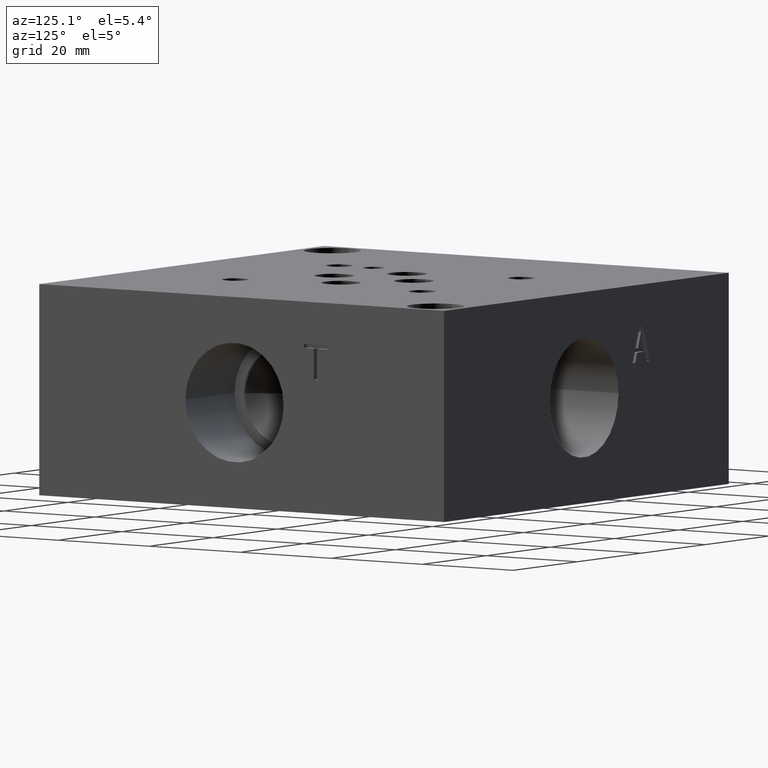
[diagram: clean part render]
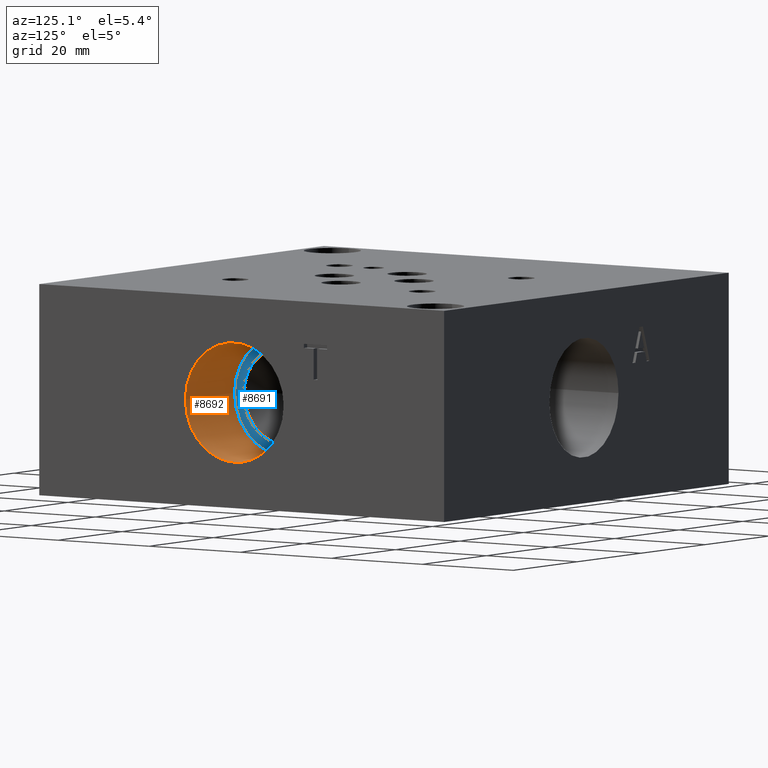
[diagram: same view with the hole feature highlighted: cylindrical wall and planar end face, labeled with their STEP entity ids]
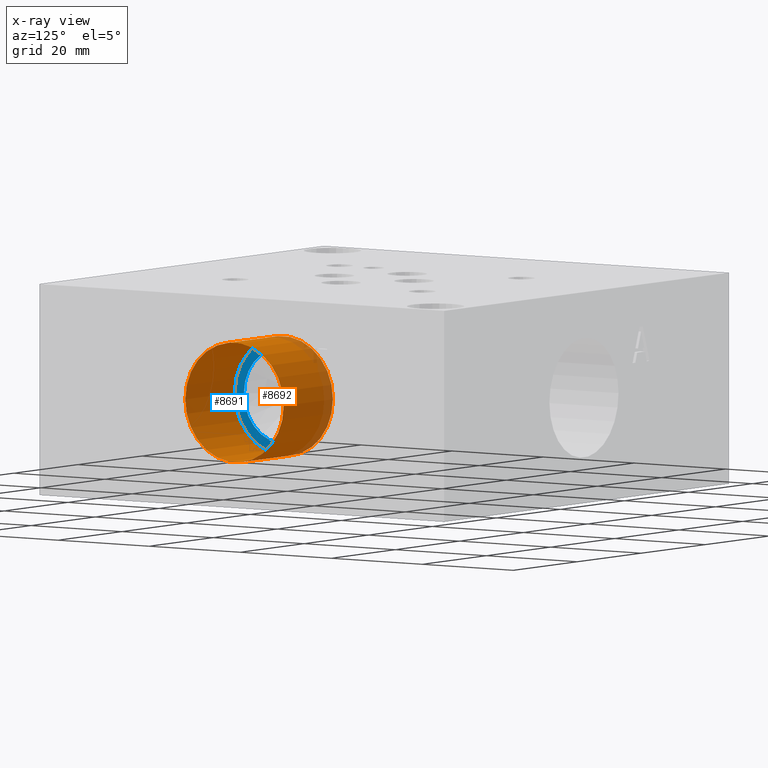
[diagram: x-ray of the same camera — body ghosted, the hole faces saturated]
A machine part, auxiliary view. The highlighted faces form one hole feature of diameter 21.59 mm: the cylindrical wall (entity #8692, orange) and its adjacent planar end face (entity #8691, blue) — they share a circular edge in the B-rep.
The next image is the same camera in x-ray (body ghosted, the hole faces saturated) — the bore reads through the body.
Wall:
#14=CYLINDRICAL_SURFACE('',#9024,10.795);
#60=CIRCLE('',#9021,10.795);
#61=CIRCLE('',#9022,10.795);
#63=CIRCLE('',#9025,10.795);
#64=CIRCLE('',#9026,10.795);
#862=FACE_OUTER_BOUND('',#1343,.T.);
#1343=EDGE_LOOP('',(#7512,#7513,#7514,#7515,#7516,#7517));
#2220=LINE('',#14762,#3060);
#3060=VECTOR('',#10494,10.795);
#4096=VERTEX_POINT('',#14751);
#4097=VERTEX_POINT('',#14752);
#4099=VERTEX_POINT('',#14758);
#4100=VERTEX_POINT('',#14759);
#5269=EDGE_CURVE('',#4096,#4097,#60,.T.);
#5270=EDGE_CURVE('',#4097,#4096,#61,.T.);
#5272=EDGE_CURVE('',#4099,#4100,#63,.T.);
#5273=EDGE_CURVE('',#4100,#4099,#64,.T.);
#5274=EDGE_CURVE('',#4100,#4097,#2220,.T.);
#7512=ORIENTED_EDGE('',*,*,#5272,.F.);
#7513=ORIENTED_EDGE('',*,*,#5273,.F.);
#7514=ORIENTED_EDGE('',*,*,#5274,.T.);
#7515=ORIENTED_EDGE('',*,*,#5269,.F.);
#7516=ORIENTED_EDGE('',*,*,#5270,.F.);
#7517=ORIENTED_EDGE('',*,*,#5274,.F.);
#8692=ADVANCED_FACE('',(#862),#14,.F.);
#9021=AXIS2_PLACEMENT_3D('',#14753,#10482,#10483);
#9022=AXIS2_PLACEMENT_3D('',#14754,#10484,#10485);
#9024=AXIS2_PLACEMENT_3D('',#14757,#10488,#10489);
#9025=AXIS2_PLACEMENT_3D('',#14760,#10490,#10491);
#9026=AXIS2_PLACEMENT_3D('',#14761,#10492,#10493);
#10482=DIRECTION('center_axis',(1.,0.,0.));
#10483=DIRECTION('ref_axis',(0.,1.,0.));
#10484=DIRECTION('center_axis',(1.,0.,0.));
#10485=DIRECTION('ref_axis',(0.,1.,0.));
#10488=DIRECTION('center_axis',(1.,0.,0.));
#10489=DIRECTION('ref_axis',(0.,1.,0.));
#10490=DIRECTION('center_axis',(-1.,0.,0.));
#10491=DIRECTION('ref_axis',(0.,1.,0.));
#10492=DIRECTION('center_axis',(-1.,0.,0.));
#10493=DIRECTION('ref_axis',(0.,1.,0.));
#10494=DIRECTION('',(-1.,0.,0.));
#14751=CARTESIAN_POINT('',(73.533,53.6702,19.05));
#14752=CARTESIAN_POINT('',(73.533,32.0802,19.05));
#14753=CARTESIAN_POINT('Origin',(73.533,42.8752,19.05));
#14754=CARTESIAN_POINT('Origin',(73.533,42.8752,19.05));
#14757=CARTESIAN_POINT('Origin',(81.2165,42.8752,19.05));
#14758=CARTESIAN_POINT('',(88.9,53.6702,19.05));
#14759=CARTESIAN_POINT('',(88.9,32.0802,19.05));
#14760=CARTESIAN_POINT('Origin',(88.9,42.8752,19.05));
#14761=CARTESIAN_POINT('Origin',(88.9,42.8752,19.05));
#14762=CARTESIAN_POINT('',(81.2165,32.0802,19.05));
End face:
#60=CIRCLE('',#9021,10.795);
#61=CIRCLE('',#9022,10.795);
#62=CIRCLE('',#9023,8.7376);
#177=FACE_BOUND('',#1342,.T.);
#455=PLANE('',#9020);
#861=FACE_OUTER_BOUND('',#1341,.T.);
#1341=EDGE_LOOP('',(#7509,#7510));
#1342=EDGE_LOOP('',(#7511));
#4096=VERTEX_POINT('',#14751);
#4097=VERTEX_POINT('',#14752);
#4098=VERTEX_POINT('',#14755);
#5269=EDGE_CURVE('',#4096,#4097,#60,.T.);
#5270=EDGE_CURVE('',#4097,#4096,#61,.T.);
#5271=EDGE_CURVE('',#4098,#4098,#62,.T.);
#7509=ORIENTED_EDGE('',*,*,#5269,.T.);
#7510=ORIENTED_EDGE('',*,*,#5270,.T.);
#7511=ORIENTED_EDGE('',*,*,#5271,.F.);
#8691=ADVANCED_FACE('',(#861,#177),#455,.T.);
#9020=AXIS2_PLACEMENT_3D('',#14750,#10480,#10481);
#9021=AXIS2_PLACEMENT_3D('',#14753,#10482,#10483);
#9022=AXIS2_PLACEMENT_3D('',#14754,#10484,#10485);
#9023=AXIS2_PLACEMENT_3D('',#14756,#10486,#10487);
#10480=DIRECTION('center_axis',(1.,0.,0.));
#10481=DIRECTION('ref_axis',(0.,1.,0.));
#10482=DIRECTION('center_axis',(1.,0.,0.));
#10483=DIRECTION('ref_axis',(0.,1.,0.));
#10484=DIRECTION('center_axis',(1.,0.,0.));
#10485=DIRECTION('ref_axis',(0.,1.,0.));
#10486=DIRECTION('center_axis',(1.,0.,0.));
#10487=DIRECTION('ref_axis',(0.,1.,0.));
#14750=CARTESIAN_POINT('Origin',(73.533,42.8752,19.05));
#14751=CARTESIAN_POINT('',(73.533,53.6702,19.05));
#14752=CARTESIAN_POINT('',(73.533,32.0802,19.05));
#14753=CARTESIAN_POINT('Origin',(73.533,42.8752,19.05));
#14754=CARTESIAN_POINT('Origin',(73.533,42.8752,19.05));
#14755=CARTESIAN_POINT('',(73.533,34.1376,19.05));
#14756=CARTESIAN_POINT('Origin',(73.533,42.8752,19.05));